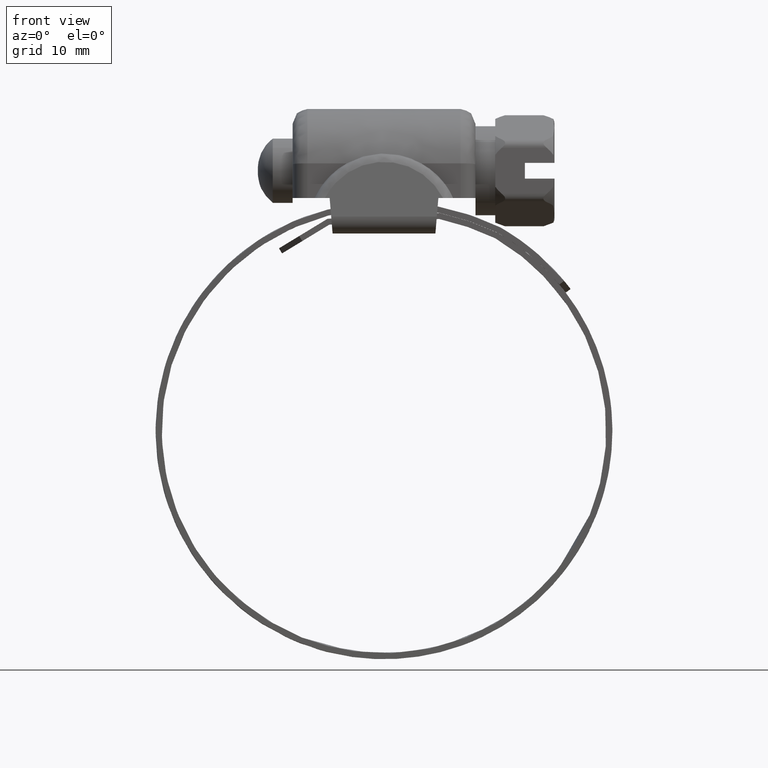
[diagram: clean part render]
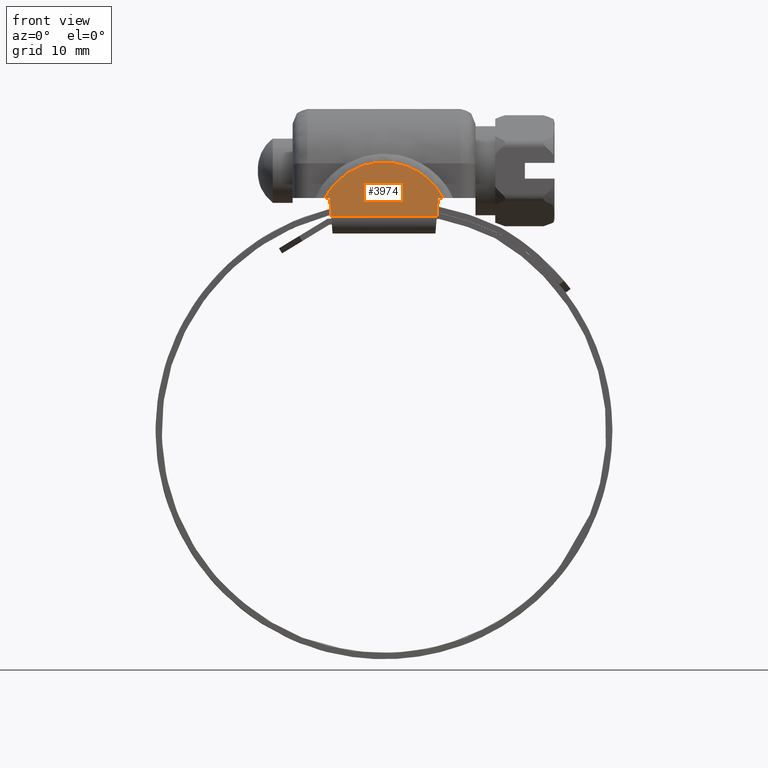
[diagram: same view with one face highlighted and labeled with its STEP entity id]
A machine part, front view. The second image highlights one B-rep face of the part: STEP entity #3974.
In plain terms, the highlighted face is a freeform B-spline surface patch.
Its self-contained STEP definition (entity closure, byte-faithful):
#2903=CARTESIAN_POINT('',(-5.343755088336830,-7.786144508388070,11.202144060042160));
#2904=VERTEX_POINT('',#2903);
#2925=CARTESIAN_POINT('',(5.343755088336931,-7.786144508388049,11.202144060042141));
#2926=VERTEX_POINT('',#2925);
#2940=CARTESIAN_POINT('',(-5.343755088336830,-7.786144508388070,11.202144060042160));
#2941=CARTESIAN_POINT('',(5.343755088336931,-7.786144508388049,11.202144060042141));
#2942=QUASI_UNIFORM_CURVE('',1,(#2940,#2941),.UNSPECIFIED.,.F.,.U.);
#2943=EDGE_CURVE('',#2904,#2926,#2942,.T.);
#3135=CARTESIAN_POINT('',(-5.962146346480231,-7.501606321312799,13.077083000000201));
#3136=VERTEX_POINT('',#3135);
#3160=CARTESIAN_POINT('',(5.962146346480231,-7.501606321312799,13.077083000000201));
#3161=VERTEX_POINT('',#3160);
#3162=CARTESIAN_POINT('',(5.962146346480231,-7.501606321312799,13.077083000000201));
#3163=CARTESIAN_POINT('',(4.098355137342957,-6.947681100976019,16.727123706694861));
#3164=CARTESIAN_POINT('',(7.585472E-015,-6.947681100976018,16.727123706694851));
#3165=CARTESIAN_POINT('',(-4.098355137342947,-6.947681100976019,16.727123706694861));
#3166=CARTESIAN_POINT('',(-5.962146346480231,-7.501606321312799,13.077083000000201));
#3174=(BOUNDED_CURVE()B_SPLINE_CURVE(2,(#3162,#3163,#3164,#3165,#3166),.UNSPECIFIED.,.F.,.U.)B_SPLINE_CURVE_WITH_KNOTS((3,2,3),(0.0,0.500000000000000,1.0),.UNSPECIFIED.)CURVE()GEOMETRIC_REPRESENTATION_ITEM()RATIONAL_B_SPLINE_CURVE((1.0,0.852867418584550,1.0,0.852867418584550,1.0))REPRESENTATION_ITEM(''));
#3175=EDGE_CURVE('',#3161,#3136,#3174,.T.);
#3941=CARTESIAN_POINT('',(-6.557764743382014,-6.905799915372402,17.003096034159309));
#3942=CARTESIAN_POINT('',(-6.557764743382014,-7.828025836424294,10.926170794031510));
#3943=CARTESIAN_POINT('',(6.557765063216467,-6.905799915372402,17.003096034159309));
#3944=CARTESIAN_POINT('',(6.557765063216467,-7.828025836424294,10.926170794031510));
#3945=B_SPLINE_SURFACE_WITH_KNOTS('',1,1,((#3941,#3943),(#3942,#3944)),.UNSPECIFIED.,.F.,.F.,.U.,(2,2),(2,2),(0.0,6.146504781057471),(0.0,13.115529806598479),.UNSPECIFIED.);
#3946=CARTESIAN_POINT('',(-5.500000000000000,-7.501606321312620,13.077083000000201));
#3947=VERTEX_POINT('',#3946);
#3948=CARTESIAN_POINT('',(-5.500000000000000,-7.501606321312620,13.077083000000201));
#3949=CARTESIAN_POINT('',(-5.343755088336830,-7.786144508388070,11.202144060042160));
#3950=QUASI_UNIFORM_CURVE('',1,(#3948,#3949),.UNSPECIFIED.,.F.,.U.);
#3951=EDGE_CURVE('',#3947,#2904,#3950,.T.);
#3952=ORIENTED_EDGE('',*,*,#3951,.T.);
#3953=ORIENTED_EDGE('',*,*,#2943,.T.);
#3954=CARTESIAN_POINT('',(5.500000000000100,-7.501606321312799,13.077083000000201));
#3955=VERTEX_POINT('',#3954);
#3956=CARTESIAN_POINT('',(5.343755088336931,-7.786144508388049,11.202144060042141));
#3957=CARTESIAN_POINT('',(5.500000000000100,-7.501606321312799,13.077083000000201));
#3958=QUASI_UNIFORM_CURVE('',1,(#3956,#3957),.UNSPECIFIED.,.F.,.U.);
#3959=EDGE_CURVE('',#2926,#3955,#3958,.T.);
#3960=ORIENTED_EDGE('',*,*,#3959,.T.);
#3961=CARTESIAN_POINT('',(5.500000000000100,-7.501606321312799,13.077083000000201));
#3962=CARTESIAN_POINT('',(5.962146346480231,-7.501606321312799,13.077083000000201));
#3963=QUASI_UNIFORM_CURVE('',1,(#3961,#3962),.UNSPECIFIED.,.F.,.U.);
#3964=EDGE_CURVE('',#3955,#3161,#3963,.T.);
#3965=ORIENTED_EDGE('',*,*,#3964,.T.);
#3966=ORIENTED_EDGE('',*,*,#3175,.T.);
#3967=CARTESIAN_POINT('',(-5.962146346480231,-7.501606321312799,13.077083000000201));
#3968=CARTESIAN_POINT('',(-5.500000000000000,-7.501606321312620,13.077083000000201));
#3969=QUASI_UNIFORM_CURVE('',1,(#3967,#3968),.UNSPECIFIED.,.F.,.U.);
#3970=EDGE_CURVE('',#3136,#3947,#3969,.T.);
#3971=ORIENTED_EDGE('',*,*,#3970,.T.);
#3972=EDGE_LOOP('',(#3952,#3953,#3960,#3965,#3966,#3971));
#3973=FACE_OUTER_BOUND('',#3972,.T.);
#3974=ADVANCED_FACE('',(#3973),#3945,.T.);